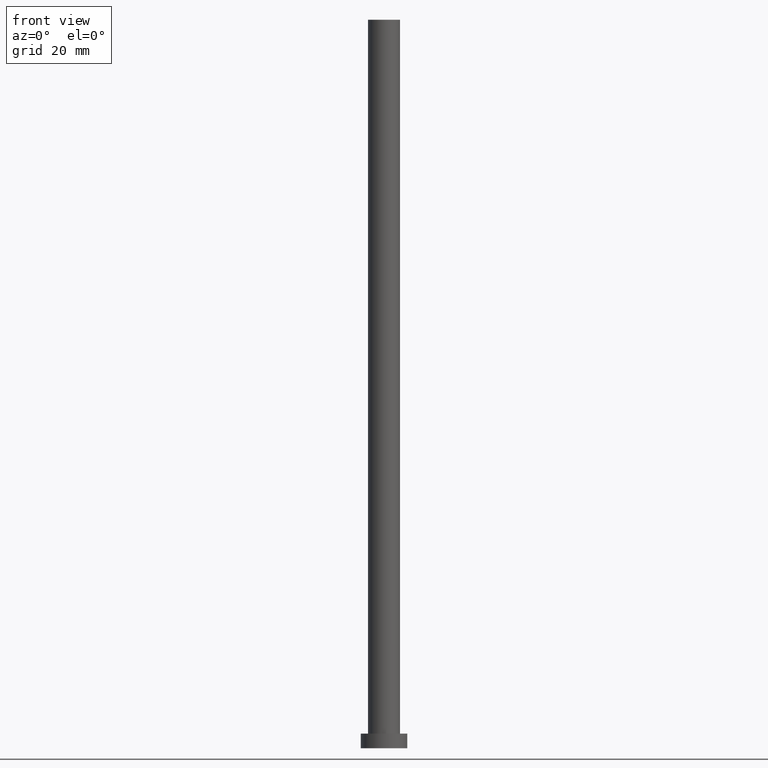
[diagram: clean part render]
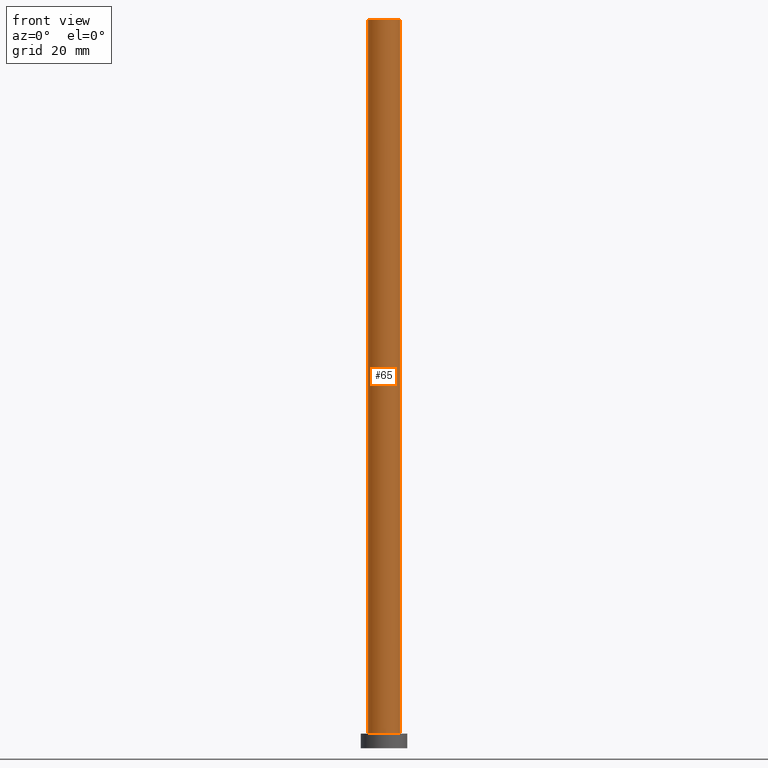
[diagram: same view with one face highlighted and labeled with its STEP entity id]
A machine part, front view. The second image highlights one B-rep face of the part: STEP entity #65.
In plain terms, the highlighted cylindrical surface (edge-blend (fillet) strip) has radius 5.5 mm, axis along (-0, -0, -1).
Its self-contained STEP definition (entity closure, byte-faithful):
#1 = CARTESIAN_POINT ( 'NONE',  ( -5.500000000000000000, 0.000000000000000000, 250.0000000000000000 ) ) ;
#5 = FACE_OUTER_BOUND ( 'NONE', #31, .T. ) ;
#9 = CARTESIAN_POINT ( 'NONE',  ( 5.500000000000000000, 6.735557395310442023E-16, 250.0000000000000000 ) ) ;
#21 = VERTEX_POINT ( 'NONE', #45 ) ;
#23 = CARTESIAN_POINT ( 'NONE',  ( -5.500000000000000000, 0.000000000000000000, 250.0000000000000000 ) ) ;
#31 = EDGE_LOOP ( 'NONE', ( #170, #89, #192, #44 ) ) ;
#35 = DIRECTION ( 'NONE',  ( -0.000000000000000000, -0.000000000000000000, -1.000000000000000000 ) ) ;
#39 = DIRECTION ( 'NONE',  ( 0.000000000000000000, 0.000000000000000000, 1.000000000000000000 ) ) ;
#41 = CIRCLE ( 'NONE', #70, 5.500000000000000000 ) ;
#44 = ORIENTED_EDGE ( 'NONE', *, *, #146, .T. ) ;
#45 = CARTESIAN_POINT ( 'NONE',  ( 5.500000000000000000, 6.735557395310442023E-16, 5.000000000000000000 ) ) ;
#52 = EDGE_CURVE ( 'NONE', #75, #233, #67, .T. ) ;
#53 = LINE ( 'NONE', #9, #219 ) ;
#65 = ADVANCED_FACE ( 'NONE', ( #5 ), #132, .T. ) ;
#67 = LINE ( 'NONE', #1, #150 ) ;
#70 = AXIS2_PLACEMENT_3D ( 'NONE', #254, #157, #213 ) ;
#74 = DIRECTION ( 'NONE',  ( -0.000000000000000000, -0.000000000000000000, -1.000000000000000000 ) ) ;
#75 = VERTEX_POINT ( 'NONE', #23 ) ;
#79 = CIRCLE ( 'NONE', #191, 5.500000000000000000 ) ;
#81 = VERTEX_POINT ( 'NONE', #251 ) ;
#89 = ORIENTED_EDGE ( 'NONE', *, *, #130, .F. ) ;
#120 = CARTESIAN_POINT ( 'NONE',  ( 0.000000000000000000, 0.000000000000000000, 250.0000000000000000 ) ) ;
#130 = EDGE_CURVE ( 'NONE', #75, #81, #79, .T. ) ;
#132 = CYLINDRICAL_SURFACE ( 'NONE', #205, 5.500000000000000000 ) ;
#133 = CARTESIAN_POINT ( 'NONE',  ( -5.500000000000000000, 0.000000000000000000, 5.000000000000000000 ) ) ;
#146 = EDGE_CURVE ( 'NONE', #233, #21, #41, .T. ) ;
#148 = DIRECTION ( 'NONE',  ( -0.000000000000000000, -0.000000000000000000, -1.000000000000000000 ) ) ;
#150 = VECTOR ( 'NONE', #148, 1000.000000000000000 ) ;
#157 = DIRECTION ( 'NONE',  ( 0.000000000000000000, 0.000000000000000000, 1.000000000000000000 ) ) ;
#164 = DIRECTION ( 'NONE',  ( 1.000000000000000000, 0.000000000000000000, 0.000000000000000000 ) ) ;
#170 = ORIENTED_EDGE ( 'NONE', *, *, #247, .F. ) ;
#173 = DIRECTION ( 'NONE',  ( -1.000000000000000000, 0.000000000000000000, 0.000000000000000000 ) ) ;
#191 = AXIS2_PLACEMENT_3D ( 'NONE', #120, #39, #164 ) ;
#192 = ORIENTED_EDGE ( 'NONE', *, *, #52, .T. ) ;
#205 = AXIS2_PLACEMENT_3D ( 'NONE', #207, #35, #173 ) ;
#207 = CARTESIAN_POINT ( 'NONE',  ( 0.000000000000000000, 0.000000000000000000, 250.0000000000000000 ) ) ;
#213 = DIRECTION ( 'NONE',  ( 1.000000000000000000, 0.000000000000000000, 0.000000000000000000 ) ) ;
#219 = VECTOR ( 'NONE', #74, 1000.000000000000000 ) ;
#233 = VERTEX_POINT ( 'NONE', #133 ) ;
#247 = EDGE_CURVE ( 'NONE', #81, #21, #53, .T. ) ;
#251 = CARTESIAN_POINT ( 'NONE',  ( 5.500000000000000000, 6.735557395310442023E-16, 250.0000000000000000 ) ) ;
#254 = CARTESIAN_POINT ( 'NONE',  ( 0.000000000000000000, 0.000000000000000000, 5.000000000000000000 ) ) ;